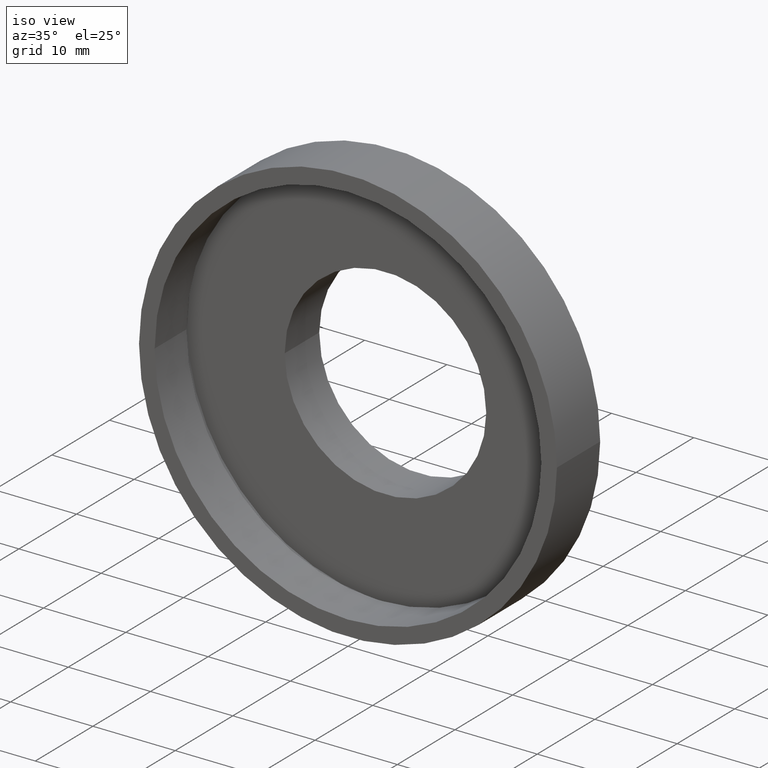
[diagram: clean part render]
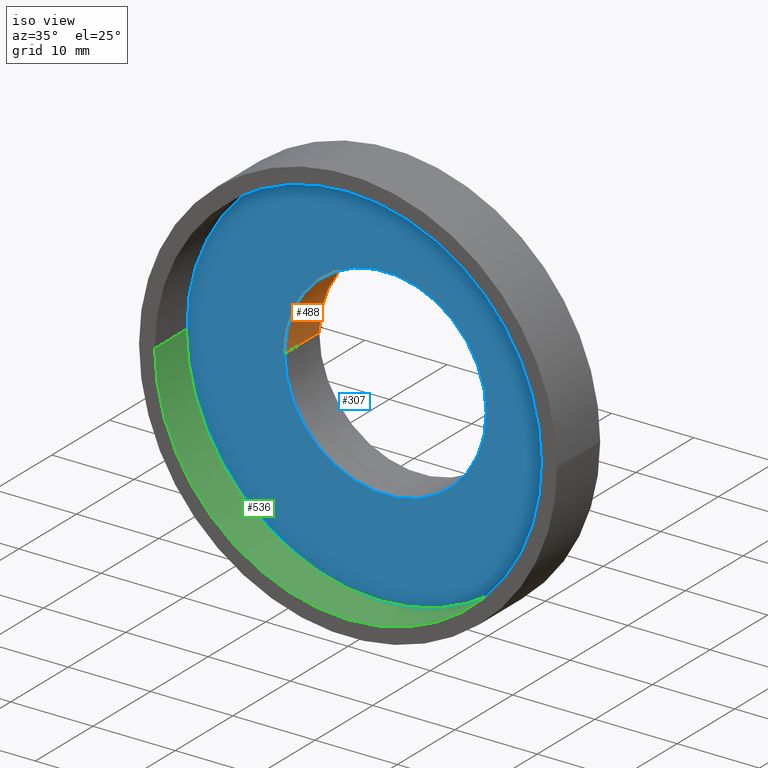
[diagram: same view with three faces highlighted in distinct colors, each labeled with its STEP entity id]
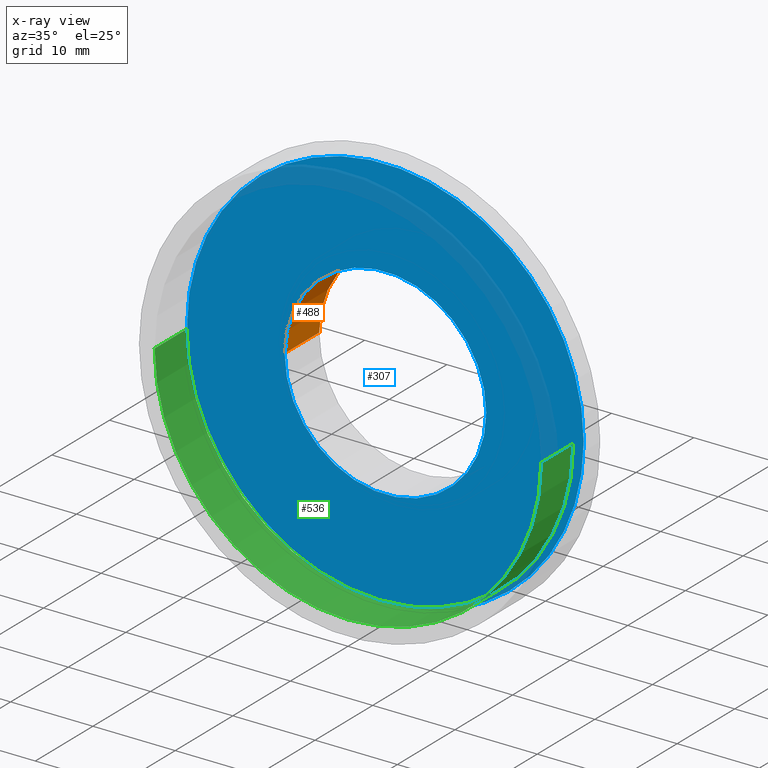
[diagram: x-ray of the same camera — body ghosted, the three highlighted faces saturated]
A machine part, iso view with three faces highlighted in distinct colors.
The next image is the same camera in x-ray (body ghosted, the three faces saturated) — at least one of them is partly hidden behind the body in this view.
Their STEP definitions:

[orange] entity #488 — the highlighted cylindrical surface (partial cylindrical patch) has radius 12.25 mm, axis along (-0, 1, -0).
#3 = CARTESIAN_POINT ( 'NONE',  ( -12.24999999999999800, 6.499999999999995600, 0.0000000000000000000 ) ) ;
#7 = VERTEX_POINT ( 'NONE', #252 ) ;
#53 = CYLINDRICAL_SURFACE ( 'NONE', #449, 12.25000000000000000 ) ;
#73 = CARTESIAN_POINT ( 'NONE',  ( 0.0000000000000000000, 16.88601823708207700, 0.0000000000000000000 ) ) ;
#85 = EDGE_CURVE ( 'NONE', #538, #182, #175, .T. ) ;
#86 = DIRECTION ( 'NONE',  ( -1.000000000000000000, -1.416100796715760600E-016, 0.0000000000000000000 ) ) ;
#96 = ORIENTED_EDGE ( 'NONE', *, *, #85, .F. ) ;
#124 = DIRECTION ( 'NONE',  ( -1.224646799147351000E-016, 1.000000000000000000, -0.0000000000000000000 ) ) ;
#135 = DIRECTION ( 'NONE',  ( -1.224646799147351000E-016, 1.000000000000000000, -0.0000000000000000000 ) ) ;
#147 = VERTEX_POINT ( 'NONE', #3 ) ;
#157 = CIRCLE ( 'NONE', #245, 12.25000000000000000 ) ;
#173 = DIRECTION ( 'NONE',  ( -1.000000000000000000, 0.0000000000000000000, 0.0000000000000000000 ) ) ;
#175 = LINE ( 'NONE', #572, #542 ) ;
#182 = VERTEX_POINT ( 'NONE', #504 ) ;
#193 = VECTOR ( 'NONE', #135, 1000.000000000000000 ) ;
#205 = CARTESIAN_POINT ( 'NONE',  ( 1.271920398992858000E-015, 6.499999999999997300, 0.0000000000000000000 ) ) ;
#209 = FACE_OUTER_BOUND ( 'NONE', #558, .T. ) ;
#217 = EDGE_CURVE ( 'NONE', #147, #7, #363, .T. ) ;
#245 = AXIS2_PLACEMENT_3D ( 'NONE', #205, #124, #475 ) ;
#252 = CARTESIAN_POINT ( 'NONE',  ( -12.25000000000000200, 12.49999999999999500, 0.0000000000000000000 ) ) ;
#277 = CARTESIAN_POINT ( 'NONE',  ( 5.371323195044474300E-016, 12.49999999999999600, 0.0000000000000000000 ) ) ;
#280 = EDGE_CURVE ( 'NONE', #7, #182, #427, .T. ) ;
#288 = ORIENTED_EDGE ( 'NONE', *, *, #280, .T. ) ;
#298 = DIRECTION ( 'NONE',  ( -1.224646799147351000E-016, 1.000000000000000000, -0.0000000000000000000 ) ) ;
#323 = DIRECTION ( 'NONE',  ( -1.224646799147351000E-016, 1.000000000000000000, -0.0000000000000000000 ) ) ;
#359 = DIRECTION ( 'NONE',  ( -1.224646799147351000E-016, 1.000000000000000000, -0.0000000000000000000 ) ) ;
#363 = LINE ( 'NONE', #455, #193 ) ;
#365 = AXIS2_PLACEMENT_3D ( 'NONE', #277, #298, #86 ) ;
#376 = EDGE_CURVE ( 'NONE', #147, #538, #157, .T. ) ;
#406 = ORIENTED_EDGE ( 'NONE', *, *, #376, .F. ) ;
#427 = CIRCLE ( 'NONE', #365, 12.25000000000000200 ) ;
#449 = AXIS2_PLACEMENT_3D ( 'NONE', #73, #323, #173 ) ;
#455 = CARTESIAN_POINT ( 'NONE',  ( -12.25000000000000000, 16.88601823708207700, 0.0000000000000000000 ) ) ;
#472 = CARTESIAN_POINT ( 'NONE',  ( 12.25000000000000400, 6.499999999999999100, 1.500192328955508100E-015 ) ) ;
#475 = DIRECTION ( 'NONE',  ( -1.000000000000000000, -1.416100796715760900E-016, 0.0000000000000000000 ) ) ;
#488 = ADVANCED_FACE ( 'NONE', ( #209 ), #53, .F. ) ;
#497 = ORIENTED_EDGE ( 'NONE', *, *, #217, .T. ) ;
#504 = CARTESIAN_POINT ( 'NONE',  ( 12.25000000000000400, 12.49999999999999800, 1.500192328955508100E-015 ) ) ;
#538 = VERTEX_POINT ( 'NONE', #472 ) ;
#542 = VECTOR ( 'NONE', #359, 1000.000000000000000 ) ;
#558 = EDGE_LOOP ( 'NONE', ( #96, #406, #497, #288 ) ) ;
#572 = CARTESIAN_POINT ( 'NONE',  ( 12.25000000000000000, 16.88601823708207700, 1.500192328955507700E-015 ) ) ;

[blue] entity #307 — the highlighted planar face has unit normal (-0, 1, 0).
#3 = CARTESIAN_POINT ( 'NONE',  ( -12.24999999999999800, 6.499999999999995600, 0.0000000000000000000 ) ) ;
#17 = CIRCLE ( 'NONE', #264, 24.10000000000000100 ) ;
#56 = PLANE ( 'NONE',  #325 ) ;
#57 = EDGE_CURVE ( 'NONE', #233, #102, #492, .T. ) ;
#69 = FACE_OUTER_BOUND ( 'NONE', #380, .T. ) ;
#74 = CARTESIAN_POINT ( 'NONE',  ( 1.271920398992858200E-015, 6.499999999999995600, 0.0000000000000000000 ) ) ;
#102 = VERTEX_POINT ( 'NONE', #218 ) ;
#119 = DIRECTION ( 'NONE',  ( -1.224646799147351000E-016, 1.000000000000000000, -0.0000000000000000000 ) ) ;
#124 = DIRECTION ( 'NONE',  ( -1.224646799147351000E-016, 1.000000000000000000, -0.0000000000000000000 ) ) ;
#140 = DIRECTION ( 'NONE',  ( -1.000000000000000000, -1.079703408284319800E-016, 0.0000000000000000000 ) ) ;
#147 = VERTEX_POINT ( 'NONE', #3 ) ;
#157 = CIRCLE ( 'NONE', #245, 12.25000000000000000 ) ;
#174 = ORIENTED_EDGE ( 'NONE', *, *, #57, .F. ) ;
#190 = EDGE_CURVE ( 'NONE', #538, #147, #612, .T. ) ;
#192 = ORIENTED_EDGE ( 'NONE', *, *, #348, .F. ) ;
#196 = DIRECTION ( 'NONE',  ( -1.224646799147351000E-016, 1.000000000000000000, -0.0000000000000000000 ) ) ;
#205 = CARTESIAN_POINT ( 'NONE',  ( 1.271920398992858000E-015, 6.499999999999997300, 0.0000000000000000000 ) ) ;
#218 = CARTESIAN_POINT ( 'NONE',  ( 24.10000000000000100, 6.499999999999998200, 2.951398785945121300E-015 ) ) ;
#222 = CARTESIAN_POINT ( 'NONE',  ( 1.271920398992858000E-015, 6.499999999999997300, 0.0000000000000000000 ) ) ;
#231 = DIRECTION ( 'NONE',  ( -1.000000000000000000, -1.079703408284319800E-016, 0.0000000000000000000 ) ) ;
#233 = VERTEX_POINT ( 'NONE', #333 ) ;
#245 = AXIS2_PLACEMENT_3D ( 'NONE', #205, #124, #475 ) ;
#264 = AXIS2_PLACEMENT_3D ( 'NONE', #74, #196, #140 ) ;
#279 = DIRECTION ( 'NONE',  ( -1.224646799147351000E-016, 1.000000000000000000, -0.0000000000000000000 ) ) ;
#287 = EDGE_LOOP ( 'NONE', ( #531, #484 ) ) ;
#307 = ADVANCED_FACE ( 'NONE', ( #69, #446 ), #56, .F. ) ;
#325 = AXIS2_PLACEMENT_3D ( 'NONE', #371, #374, #349 ) ;
#333 = CARTESIAN_POINT ( 'NONE',  ( -24.10000000000000100, 6.499999999999992900, 0.0000000000000000000 ) ) ;
#348 = EDGE_CURVE ( 'NONE', #102, #233, #17, .T. ) ;
#349 = DIRECTION ( 'NONE',  ( -1.000000000000000000, -1.224646799147351000E-016, 0.0000000000000000000 ) ) ;
#371 = CARTESIAN_POINT ( 'NONE',  ( 12.25000000000000200, 6.499999999999998200, 0.0000000000000000000 ) ) ;
#374 = DIRECTION ( 'NONE',  ( -1.224646799147351000E-016, 1.000000000000000000, 0.0000000000000000000 ) ) ;
#376 = EDGE_CURVE ( 'NONE', #147, #538, #157, .T. ) ;
#380 = EDGE_LOOP ( 'NONE', ( #174, #192 ) ) ;
#395 = CARTESIAN_POINT ( 'NONE',  ( 1.271920398992858200E-015, 6.499999999999995600, 0.0000000000000000000 ) ) ;
#419 = AXIS2_PLACEMENT_3D ( 'NONE', #222, #119, #483 ) ;
#423 = AXIS2_PLACEMENT_3D ( 'NONE', #395, #279, #231 ) ;
#446 = FACE_BOUND ( 'NONE', #287, .T. ) ;
#472 = CARTESIAN_POINT ( 'NONE',  ( 12.25000000000000400, 6.499999999999999100, 1.500192328955508100E-015 ) ) ;
#475 = DIRECTION ( 'NONE',  ( -1.000000000000000000, -1.416100796715760900E-016, 0.0000000000000000000 ) ) ;
#483 = DIRECTION ( 'NONE',  ( -1.000000000000000000, -1.416100796715760900E-016, 0.0000000000000000000 ) ) ;
#484 = ORIENTED_EDGE ( 'NONE', *, *, #190, .T. ) ;
#492 = CIRCLE ( 'NONE', #423, 24.10000000000000100 ) ;
#531 = ORIENTED_EDGE ( 'NONE', *, *, #376, .T. ) ;
#538 = VERTEX_POINT ( 'NONE', #472 ) ;
#612 = CIRCLE ( 'NONE', #419, 12.25000000000000000 ) ;

[green] entity #536 — the highlighted cylindrical surface (partial cylindrical patch) has radius 23.5 mm, axis along (-0, 1, -0).
#26 = AXIS2_PLACEMENT_3D ( 'NONE', #413, #232, #579 ) ;
#50 = EDGE_CURVE ( 'NONE', #354, #461, #590, .T. ) ;
#60 = CARTESIAN_POINT ( 'NONE',  ( 23.50000000000000700, 5.499999999999999100, 2.877919977996281100E-015 ) ) ;
#62 = AXIS2_PLACEMENT_3D ( 'NONE', #129, #240, #82 ) ;
#76 = ORIENTED_EDGE ( 'NONE', *, *, #50, .F. ) ;
#78 = DIRECTION ( 'NONE',  ( -1.224646799147351000E-016, 1.000000000000000000, -0.0000000000000000000 ) ) ;
#82 = DIRECTION ( 'NONE',  ( -1.000000000000000000, -1.476360405086644300E-016, 0.0000000000000000000 ) ) ;
#120 = CARTESIAN_POINT ( 'NONE',  ( -23.50000000000000000, 16.88601823708207300, 0.0000000000000000000 ) ) ;
#129 = CARTESIAN_POINT ( 'NONE',  ( 0.0000000000000000000, 16.88601823708207700, 0.0000000000000000000 ) ) ;
#156 = VERTEX_POINT ( 'NONE', #60 ) ;
#162 = VECTOR ( 'NONE', #78, 1000.000000000000000 ) ;
#195 = FACE_OUTER_BOUND ( 'NONE', #335, .T. ) ;
#219 = ORIENTED_EDGE ( 'NONE', *, *, #506, .F. ) ;
#232 = DIRECTION ( 'NONE',  ( -1.224646799147351000E-016, 1.000000000000000000, -0.0000000000000000000 ) ) ;
#240 = DIRECTION ( 'NONE',  ( -1.224646799147351000E-016, 1.000000000000000000, -0.0000000000000000000 ) ) ;
#242 = DIRECTION ( 'NONE',  ( -1.224646799147351000E-016, 1.000000000000000000, -0.0000000000000000000 ) ) ;
#251 = CIRCLE ( 'NONE', #26, 23.50000000000000400 ) ;
#274 = CARTESIAN_POINT ( 'NONE',  ( -23.49999999999999600, -6.347366929949889400E-015, 0.0000000000000000000 ) ) ;
#310 = ORIENTED_EDGE ( 'NONE', *, *, #592, .T. ) ;
#335 = EDGE_LOOP ( 'NONE', ( #76, #560, #310, #219 ) ) ;
#338 = VERTEX_POINT ( 'NONE', #434 ) ;
#354 = VERTEX_POINT ( 'NONE', #513 ) ;
#383 = AXIS2_PLACEMENT_3D ( 'NONE', #611, #619, #495 ) ;
#401 = LINE ( 'NONE', #593, #532 ) ;
#413 = CARTESIAN_POINT ( 'NONE',  ( 1.394385078907593200E-015, 5.499999999999996400, 0.0000000000000000000 ) ) ;
#434 = CARTESIAN_POINT ( 'NONE',  ( -23.50000000000000400, 5.499999999999993800, 0.0000000000000000000 ) ) ;
#461 = VERTEX_POINT ( 'NONE', #274 ) ;
#493 = CYLINDRICAL_SURFACE ( 'NONE', #62, 23.50000000000000000 ) ;
#495 = DIRECTION ( 'NONE',  ( -1.000000000000000000, -1.224646799147351200E-016, 0.0000000000000000000 ) ) ;
#496 = LINE ( 'NONE', #120, #162 ) ;
#506 = EDGE_CURVE ( 'NONE', #461, #338, #496, .T. ) ;
#512 = EDGE_CURVE ( 'NONE', #354, #156, #401, .T. ) ;
#513 = CARTESIAN_POINT ( 'NONE',  ( 23.50000000000000700, -5.915269739573390000E-016, 2.877919977996281100E-015 ) ) ;
#532 = VECTOR ( 'NONE', #242, 1000.000000000000000 ) ;
#536 = ADVANCED_FACE ( 'NONE', ( #195 ), #493, .F. ) ;
#560 = ORIENTED_EDGE ( 'NONE', *, *, #512, .T. ) ;
#579 = DIRECTION ( 'NONE',  ( -1.000000000000000000, -1.107270303814983000E-016, 0.0000000000000000000 ) ) ;
#590 = CIRCLE ( 'NONE', #383, 23.50000000000000000 ) ;
#592 = EDGE_CURVE ( 'NONE', #156, #338, #251, .T. ) ;
#593 = CARTESIAN_POINT ( 'NONE',  ( 23.50000000000000000, 16.88601823708208000, 2.877919977996280300E-015 ) ) ;
#611 = CARTESIAN_POINT ( 'NONE',  ( 2.067940818438636500E-015, -3.469446951953614200E-015, 0.0000000000000000000 ) ) ;
#619 = DIRECTION ( 'NONE',  ( -1.224646799147351000E-016, 1.000000000000000000, -0.0000000000000000000 ) ) ;